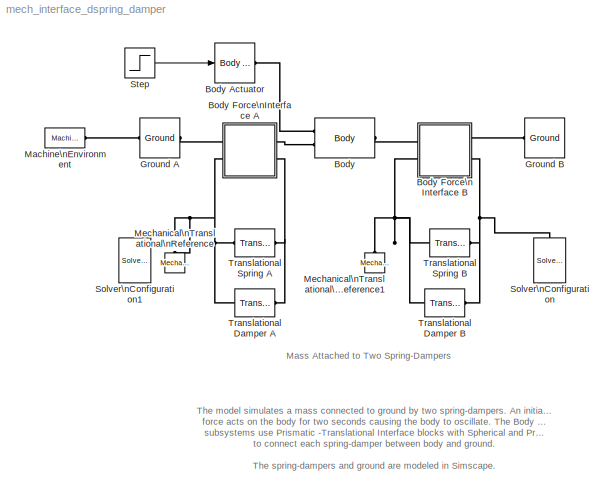
MODEL mech_interface_dspring_damper
KIND model
CONFIG PostLoadFcn = hws = get_param(gcs, 'modelworkspace');\n\nhws.assignin('L_a', 1);\nhws.assignin('L_b', 1);\nhws.assignin('L_c', 0.1);\n\nhws.assignin('M_m', 0.5);\nhws.evalin('I_m = [1/12*M_m*(L_b^2 + L_c^2) 0 0;   0 1/12*M_m*(L_a^2 + L_c^2) 0;   0 0 1/12*M_m*(L_a^2 + L_b^2)];');\n\nclear hws
BLOCK [Reference] Body  REF=mblibv1/Bodies/Body
  AttachedToCS = 1
  BodyColor = [0.5 0.5 0.5]
  CG = Left$CG$[L_a/2 0 0]$CS1$CS1$m$[0 0 0]$Euler X-Y-Z$deg$WORLD$true
  CGPos = [L_a/2 0 0]
  CGRot = [0 0 0]
  CS0Pos = []
  CS0Rot = []
  CS10Pos = []
  CS10Rot = []
  CS11Pos = []
  CS11Rot = []
  CS12Pos = []
  CS12Rot = []
  CS13Pos = []
  CS13Rot = []
  CS14Pos = []
  CS14Rot = []
  CS15Pos = []
  CS15Rot = []
  CS16Pos = []
  CS16Rot = []
  CS17Pos = []
  CS17Rot = []
  CS18Pos = []
  CS18Rot = []
  CS19Pos = []
  CS19Rot = []
  CS1Pos = [0.0 0 0]
  CS1Rot = [0 0 0]
  CS20Pos = []
  CS20Rot = []
  CS2Pos = [L_a 0 0]
  CS2Rot = [0 0 0]
  CS3Pos = [L_a/2 -L_a/2 0]
  CS3Rot = [0 0 0]
  CS4Pos = [L_a/2 L_a/2 0]
  CS4Rot = [0 0 0]
  CS5Pos = []
  CS5Rot = []
  CS6Pos = []
  CS6Rot = []
  CS7Pos = []
  CS7Rot = []
  CS8Pos = []
  CS8Rot = []
  CS9Pos = []
  CS9Rot = []
  ClassName = Body
  Density = 1
  DensityUnits = kg/m^3
  DensityUse = false
  DialogClass = MechanicalBodyBlock
  DialogController = MECH.DynMechDlgSource
  GraphicsMode = 1
  GraphicsObj = []
  Inertia = I_m
  InertiaUnits = kg*m^2
  LConnTagsString = CG|CS1
  LeftPortType = workingframe
  Mass = M_m
  MassUnits = kg
  PhysicalDomain = mechanical
  Ports = [0, 0, 0, 0, 0, 2, 1]
  RConnTagsString = CS2
  RightPortType = workingframe
  Shape = Cylinder
  ShapeDims = [1 1]
  ShapeUnits = m
  ShapeUse = false
  SourceBlock = mblibv1/Bodies/Body
  SourceType = Body
  SubClassName = Unknown
  WorkingFrames = Left$CS1$[0.0 0 0]$Adjoining$Adjoining$m$[0 0 0]$Euler X-Y-Z$deg$WORLD$true#Right$CS2$[L_a 0 0]$CS1$CS1$m$[0 0 0]$Euler X-Y-Z$deg$WORLD$true#Right$CS3$[L_a/2 -L_a/2 0]$CS1$CS1$m$[0 0 0]$Euler X-Y-Z$deg$WORLD$false#Right$CS4$[L_a/2 L_a/2 0]$CS1$CS1$m$[0 0 0]$Euler X-Y-Z$deg$WORLD$false
BLOCK [Reference] Body Actuator  REF=mblibv1/Sensors & \nActuators/Body Actuator
  AccelerationUnits = m/s^2
  ActiveIO = on
  ActuationStyle = Force
  Angle = off
  AngleUnits = deg
  ArcAccelerationUnits = deg/s^2
  ArcVelocityUnits = deg/s
  ClassName = BodyActuatorForceTorque
  CoordPosition = on
  CoordPositionUnits = m
  DialogClass = MechanicalActuatorBlock
  DialogController = MECH.DynMechDlgSource
  Force = on
  ForceUnits = N
  FunctionWithSeparateData = off
  PhysicalDomain = Mechanical
  PortType = blob
  Ports = [1, 0, 0, 0, 0, 0, 1]
  RTWMemSecDataConstants = Inherit from model
  RTWMemSecDataInternal = Inherit from model
  RTWMemSecDataParameters = Inherit from model
  RTWMemSecFuncExecute = Inherit from model
  RTWMemSecFuncInitTerm = Inherit from model
  ReferenceFrame = Absolute (World)
  ShowPortLabels = FromPortIcon
  SourceBlock = mblibv1/Sensors & \nActuators/Body Actuator
  SourceType = Body Actuator
  SystemSampleTime = -1
  Torque = off
  TorqueUnits = N*m
  VelocityUnits = m/s
  Width = 3
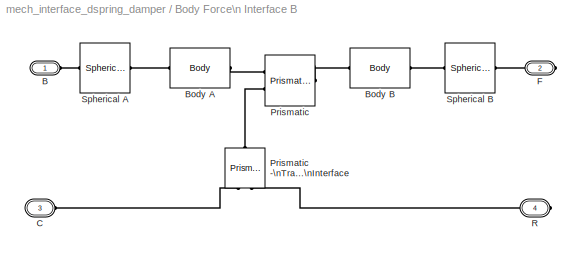
BLOCK [SubSystem] Body Force\n Interface B
  FunctionWithSeparateData = off
  MaskHideContents = off
  MinAlgLoopOccurrences = off
  Opaque = off
  Ports = [0, 0, 0, 0, 0, 2, 2]
  PropExecContextOutsideSubsystem = off
  RTWSystemCode = Auto
  RequestExecContextInheritance = off
BLOCK [PMIOPort] Body Force\n Interface B/B
  Port = 1
  Side = Left
BLOCK [Reference] Body Force\n Interface B/Body A  REF=mblibv1/Bodies/Body
  AttachedToCS = 1
  BodyColor = [0.5 0.5 0.5]
  CG = Left$CG$[-0.25 0 0]$CS2$CS2$m$[0 0 0]$Euler X-Y-Z$deg$WORLD$false
  CGPos = [-0.25 0 0]
  CGRot = [0 0 0]
  CS0Pos = []
  CS0Rot = []
  CS10Pos = []
  CS10Rot = []
  CS11Pos = []
  CS11Rot = []
  CS12Pos = []
  CS12Rot = []
  CS13Pos = []
  CS13Rot = []
  CS14Pos = []
  CS14Rot = []
  CS15Pos = []
  CS15Rot = []
  CS16Pos = []
  CS16Rot = []
  CS17Pos = []
  CS17Rot = []
  CS18Pos = []
  CS18Rot = []
  CS19Pos = []
  CS19Rot = []
  CS1Pos = [-0.5 0 0]
  CS1Rot = [0 0 0]
  CS20Pos = []
  CS20Rot = []
  CS2Pos = [0.5 0 0]
  CS2Rot = [0 0 0]
  CS3Pos = []
  CS3Rot = []
  CS4Pos = []
  CS4Rot = []
  CS5Pos = []
  CS5Rot = []
  CS6Pos = []
  CS6Rot = []
  CS7Pos = []
  CS7Rot = []
  CS8Pos = []
  CS8Rot = []
  CS9Pos = []
  CS9Rot = []
  ClassName = Body
  Density = 1
  DensityUnits = kg/m^3
  DensityUse = false
  DialogClass = MechanicalBodyBlock
  DialogController = MECH.DynMechDlgSource
  GraphicsMode = 1
  GraphicsObj = []
  Inertia = eye(3)*1e-4
  InertiaUnits = kg*m^2
  LConnTagsString = CS1
  LeftPortType = workingframe
  Mass = 1
  MassUnits = kg
  PhysicalDomain = mechanical
  Ports = [0, 0, 0, 0, 0, 1, 1]
  RConnTagsString = CS2
  RightPortType = workingframe
  Shape = Cylinder
  ShapeDims = [1 1]
  ShapeUnits = m
  ShapeUse = false
  SourceBlock = mblibv1/Bodies/Body
  SourceType = Body
  SubClassName = Unknown
  WorkingFrames = Left$CS1$[-0.5 0 0]$CS2$CS2$m$[0 0 0]$Euler X-Y-Z$deg$WORLD$true#Right$CS2$[0.5 0 0]$Adjoining$Adjoining$m$[0 0 0]$Euler X-Y-Z$deg$WORLD$true
BLOCK [Reference] Body Force\n Interface B/Body B  REF=mblibv1/Bodies/Body
  AttachedToCS = 1
  BodyColor = [0.5 0.5 0.5]
  CG = Left$CG$[-0.25 0 0]$CS2$CS2$m$[0 0 0]$Euler X-Y-Z$deg$WORLD$false
  CGPos = [-0.25 0 0]
  CGRot = [0 0 0]
  CS0Pos = []
  CS0Rot = []
  CS10Pos = []
  CS10Rot = []
  CS11Pos = []
  CS11Rot = []
  CS12Pos = []
  CS12Rot = []
  CS13Pos = []
  CS13Rot = []
  CS14Pos = []
  CS14Rot = []
  CS15Pos = []
  CS15Rot = []
  CS16Pos = []
  CS16Rot = []
  CS17Pos = []
  CS17Rot = []
  CS18Pos = []
  CS18Rot = []
  CS19Pos = []
  CS19Rot = []
  CS1Pos = [-0.5 0 0]
  CS1Rot = [0 0 0]
  CS20Pos = []
  CS20Rot = []
  CS2Pos = [0 0 0]
  CS2Rot = [0 0 0]
  CS3Pos = []
  CS3Rot = []
  CS4Pos = []
  CS4Rot = []
  CS5Pos = []
  CS5Rot = []
  CS6Pos = []
  CS6Rot = []
  CS7Pos = []
  CS7Rot = []
  CS8Pos = []
  CS8Rot = []
  CS9Pos = []
  CS9Rot = []
  ClassName = Body
  Density = 1
  DensityUnits = kg/m^3
  DensityUse = false
  DialogClass = MechanicalBodyBlock
  DialogController = MECH.DynMechDlgSource
  GraphicsMode = 1
  GraphicsObj = []
  Inertia = eye(3)*1e-4
  InertiaUnits = kg*m^2
  LConnTagsString = CS1
  LeftPortType = workingframe
  Mass = 1
  MassUnits = kg
  PhysicalDomain = mechanical
  Ports = [0, 0, 0, 0, 0, 1, 1]
  RConnTagsString = CS2
  RightPortType = workingframe
  Shape = Cylinder
  ShapeDims = [1 1]
  ShapeUnits = m
  ShapeUse = false
  SourceBlock = mblibv1/Bodies/Body
  SourceType = Body
  SubClassName = Unknown
  WorkingFrames = Left$CS1$[-0.5 0 0]$CS2$CS2$m$[0 0 0]$Euler X-Y-Z$deg$WORLD$true#Right$CS2$[0 0 0]$Adjoining$Adjoining$m$[0 0 0]$Euler X-Y-Z$deg$WORLD$true
BLOCK [PMIOPort] Body Force\n Interface B/C
  Port = 3
  Side = Left
BLOCK [PMIOPort] Body Force\n Interface B/F
  Port = 2
  Side = Right
BLOCK [Reference] Body Force\n Interface B/Prismatic  REF=mblibv1/Joints/Prismatic
  ClassName = Joint
  CutJoint = off
  DialogClass = JointBlock
  DialogController = MECH.DynMechDlgSource
  LConnTagsString = __newl0|SA1
  LeftPortType = blob
  MarkAsCut = off
  NumSAPorts = 1
  P1Axis = [1 0 0]
  PhysicalDomain = mechanical
  Ports = [0, 0, 0, 0, 0, 2, 1]
  PrimitiveProps = P1$Base$[1 0 0]$prismatic
  Primitives = prismatic
  RConnTagsString = __newr0
  RightPortType = blob
  SourceBlock = mblibv1/Joints/Prismatic
  SourceType = Prismatic
  SubClassName = Unknown
BLOCK [Reference] Body Force\n Interface B/Prismatic -\nTranslational\nInterface  REF=mblibv1/Interface \nElements/Prismatic -\nTranslational\nInterface
  ClassName = PrismaticTranslationalInterface
  DialogClass = PrismaticTranslationalInterface
  DialogController = MECH.DynMechDlgSource
  FunctionWithSeparateData = off
  Ports = [0, 0, 0, 0, 0, 2, 1]
  Primitive = P1
  RTWMemSecDataConstants = Inherit from model
  RTWMemSecDataInternal = Inherit from model
  RTWMemSecDataParameters = Inherit from model
  RTWMemSecFuncExecute = Inherit from model
  RTWMemSecFuncInitTerm = Inherit from model
  ShowPortLabels = FromPortIcon
  SourceBlock = mblibv1/Interface \nElements/Prismatic -\nTranslational\nInterface
  SourceType = Prismatic - Translational Interface
  SystemSampleTime = -1
BLOCK [PMIOPort] Body Force\n Interface B/R
  Port = 4
  Side = Right
BLOCK [Reference] Body Force\n Interface B/Spherical A   REF=mblibv1/Joints/Spherical
  ClassName = Joint
  CutJoint = off
  DialogClass = JointBlock
  DialogController = MECH.DynMechDlgSource
  LConnTagsString = __newl0
  LeftPortType = blob
  MarkAsCut = off
  NumSAPorts = 0
  PhysicalDomain = mechanical
  Ports = [0, 0, 0, 0, 0, 1, 1]
  PrimitiveProps = S$WORLD$[0 0 0]$spherical
  Primitives = spherical
  RConnTagsString = __newr0
  RightPortType = blob
  SAxis = [0 0 0]
  SourceBlock = mblibv1/Joints/Spherical
  SourceType = Spherical
  SubClassName = Unknown
BLOCK [Reference] Body Force\n Interface B/Spherical B  REF=mblibv1/Joints/Spherical
  ClassName = Joint
  CutJoint = off
  DialogClass = JointBlock
  DialogController = MECH.DynMechDlgSource
  LConnTagsString = __newl0
  LeftPortType = blob
  MarkAsCut = off
  NumSAPorts = 0
  PhysicalDomain = mechanical
  Ports = [0, 0, 0, 0, 0, 1, 1]
  PrimitiveProps = S$World$[0 0 0]$spherical
  Primitives = spherical
  RConnTagsString = __newr0
  RightPortType = blob
  SAxis = [0 0 0]
  SourceBlock = mblibv1/Joints/Spherical
  SourceType = Spherical
  SubClassName = Unknown
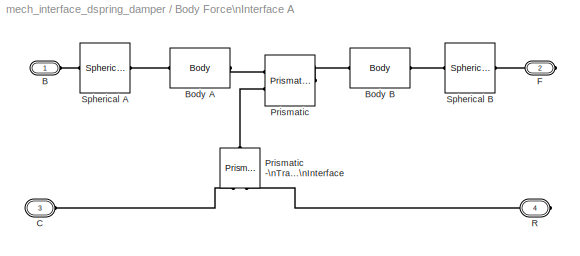
BLOCK [SubSystem] Body Force\nInterface A
  FunctionWithSeparateData = off
  MaskHideContents = off
  MinAlgLoopOccurrences = off
  Opaque = off
  Ports = [0, 0, 0, 0, 0, 2, 2]
  PropExecContextOutsideSubsystem = off
  RTWSystemCode = Auto
  RequestExecContextInheritance = off
BLOCK [PMIOPort] Body Force\nInterface A/B
  Port = 1
  Side = Left
BLOCK [Reference] Body Force\nInterface A/Body A  REF=mblibv1/Bodies/Body
  AttachedToCS = 1
  BodyColor = [0.5 0.5 0.5]
  CG = Left$CG$[0.25 0 0]$CS1$CS1$m$[0 0 0]$Euler X-Y-Z$deg$WORLD$false
  CGPos = [0.25 0 0]
  CGRot = [0 0 0]
  CS0Pos = []
  CS0Rot = []
  CS10Pos = []
  CS10Rot = []
  CS11Pos = []
  CS11Rot = []
  CS12Pos = []
  CS12Rot = []
  CS13Pos = []
  CS13Rot = []
  CS14Pos = []
  CS14Rot = []
  CS15Pos = []
  CS15Rot = []
  CS16Pos = []
  CS16Rot = []
  CS17Pos = []
  CS17Rot = []
  CS18Pos = []
  CS18Rot = []
  CS19Pos = []
  CS19Rot = []
  CS1Pos = [0 0 0]
  CS1Rot = [0 0 0]
  CS20Pos = []
  CS20Rot = []
  CS2Pos = [0.5 0 0]
  CS2Rot = [0 0 0]
  CS3Pos = []
  CS3Rot = []
  CS4Pos = []
  CS4Rot = []
  CS5Pos = []
  CS5Rot = []
  CS6Pos = []
  CS6Rot = []
  CS7Pos = []
  CS7Rot = []
  CS8Pos = []
  CS8Rot = []
  CS9Pos = []
  CS9Rot = []
  ClassName = Body
  Density = 1
  DensityUnits = kg/m^3
  DensityUse = false
  DialogClass = MechanicalBodyBlock
  DialogController = MECH.DynMechDlgSource
  GraphicsMode = 1
  GraphicsObj = []
  Inertia = eye(3)*1e-4
  InertiaUnits = kg*m^2
  LConnTagsString = CS1
  LeftPortType = workingframe
  Mass = 1
  MassUnits = kg
  PhysicalDomain = mechanical
  Ports = [0, 0, 0, 0, 0, 1, 1]
  RConnTagsString = CS2
  RightPortType = workingframe
  Shape = Cylinder
  ShapeDims = [1 1]
  ShapeUnits = m
  ShapeUse = false
  SourceBlock = mblibv1/Bodies/Body
  SourceType = Body
  SubClassName = Unknown
  WorkingFrames = Left$CS1$[0 0 0]$Adjoining$Adjoining$m$[0 0 0]$Euler X-Y-Z$deg$WORLD$true#Right$CS2$[0.5 0 0]$CS1$CS1$m$[0 0 0]$Euler X-Y-Z$deg$WORLD$true
BLOCK [Reference] Body Force\nInterface A/Body B  REF=mblibv1/Bodies/Body
  AttachedToCS = 1
  BodyColor = [0.5 0.5 0.5]
  CG = Left$CG$[0.25 0 0]$CS1$CS1$m$[0 0 0]$Euler X-Y-Z$deg$WORLD$false
  CGPos = [0.25 0 0]
  CGRot = [0 0 0]
  CS0Pos = []
  CS0Rot = []
  CS10Pos = []
  CS10Rot = []
  CS11Pos = []
  CS11Rot = []
  CS12Pos = []
  CS12Rot = []
  CS13Pos = []
  CS13Rot = []
  CS14Pos = []
  CS14Rot = []
  CS15Pos = []
  CS15Rot = []
  CS16Pos = []
  CS16Rot = []
  CS17Pos = []
  CS17Rot = []
  CS18Pos = []
  CS18Rot = []
  CS19Pos = []
  CS19Rot = []
  CS1Pos = [-0.5 0 0]
  CS1Rot = [0 0 0]
  CS20Pos = []
  CS20Rot = []
  CS2Pos = [0.5 0 0]
  CS2Rot = [0 0 0]
  CS3Pos = []
  CS3Rot = []
  CS4Pos = []
  CS4Rot = []
  CS5Pos = []
  CS5Rot = []
  CS6Pos = []
  CS6Rot = []
  CS7Pos = []
  CS7Rot = []
  CS8Pos = []
  CS8Rot = []
  CS9Pos = []
  CS9Rot = []
  ClassName = Body
  Density = 1
  DensityUnits = kg/m^3
  DensityUse = false
  DialogClass = MechanicalBodyBlock
  DialogController = MECH.DynMechDlgSource
  GraphicsMode = 1
  GraphicsObj = []
  Inertia = eye(3)*1e-4
  InertiaUnits = kg*m^2
  LConnTagsString = CS1
  LeftPortType = workingframe
  Mass = 1
  MassUnits = kg
  PhysicalDomain = mechanical
  Ports = [0, 0, 0, 0, 0, 1, 1]
  RConnTagsString = CS2
  RightPortType = workingframe
  Shape = Cylinder
  ShapeDims = [1 1]
  ShapeUnits = m
  ShapeUse = false
  SourceBlock = mblibv1/Bodies/Body
  SourceType = Body
  SubClassName = Unknown
  WorkingFrames = Left$CS1$[-0.5 0 0]$Adjoining$Adjoining$m$[0 0 0]$Euler X-Y-Z$deg$WORLD$true#Right$CS2$[0.5 0 0]$CS1$CS1$m$[0 0 0]$Euler X-Y-Z$deg$WORLD$true
BLOCK [PMIOPort] Body Force\nInterface A/C
  Port = 3
  Side = Left
BLOCK [PMIOPort] Body Force\nInterface A/F
  Port = 2
  Side = Right
BLOCK [Reference] Body Force\nInterface A/Prismatic  REF=mblibv1/Joints/Prismatic
  ClassName = Joint
  CutJoint = off
  DialogClass = JointBlock
  DialogController = MECH.DynMechDlgSource
  LConnTagsString = __newl0|SA1
  LeftPortType = blob
  MarkAsCut = off
  NumSAPorts = 1
  P1Axis = [1 0 0]
  PhysicalDomain = mechanical
  Ports = [0, 0, 0, 0, 0, 2, 1]
  PrimitiveProps = P1$Base$[1 0 0]$prismatic
  Primitives = prismatic
  RConnTagsString = __newr0
  RightPortType = blob
  SourceBlock = mblibv1/Joints/Prismatic
  SourceType = Prismatic
  SubClassName = Unknown
BLOCK [Reference] Body Force\nInterface A/Prismatic -\nTranslational\nInterface  REF=mblibv1/Interface \nElements/Prismatic -\nTranslational\nInterface
  ClassName = PrismaticTranslationalInterface
  DialogClass = PrismaticTranslationalInterface
  DialogController = MECH.DynMechDlgSource
  FunctionWithSeparateData = off
  Ports = [0, 0, 0, 0, 0, 2, 1]
  Primitive = P1
  RTWMemSecDataConstants = Inherit from model
  RTWMemSecDataInternal = Inherit from model
  RTWMemSecDataParameters = Inherit from model
  RTWMemSecFuncExecute = Inherit from model
  RTWMemSecFuncInitTerm = Inherit from model
  ShowPortLabels = FromPortIcon
  SourceBlock = mblibv1/Interface \nElements/Prismatic -\nTranslational\nInterface
  SourceType = Prismatic - Translational Interface
  SystemSampleTime = -1
BLOCK [PMIOPort] Body Force\nInterface A/R
  Port = 4
  Side = Right
BLOCK [Reference] Body Force\nInterface A/Spherical A   REF=mblibv1/Joints/Spherical
  ClassName = Joint
  CutJoint = off
  DialogClass = JointBlock
  DialogController = MECH.DynMechDlgSource
  LConnTagsString = __newl0
  LeftPortType = blob
  MarkAsCut = off
  NumSAPorts = 0
  PhysicalDomain = mechanical
  Ports = [0, 0, 0, 0, 0, 1, 1]
  PrimitiveProps = S$WORLD$[0 0 0]$spherical
  Primitives = spherical
  RConnTagsString = __newr0
  RightPortType = blob
  SAxis = [0 0 0]
  SourceBlock = mblibv1/Joints/Spherical
  SourceType = Spherical
  SubClassName = Unknown
BLOCK [Reference] Body Force\nInterface A/Spherical B  REF=mblibv1/Joints/Spherical
  ClassName = Joint
  CutJoint = off
  DialogClass = JointBlock
  DialogController = MECH.DynMechDlgSource
  LConnTagsString = __newl0
  LeftPortType = blob
  MarkAsCut = off
  NumSAPorts = 0
  PhysicalDomain = mechanical
  Ports = [0, 0, 0, 0, 0, 1, 1]
  PrimitiveProps = S$World$[0 0 0]$spherical
  Primitives = spherical
  RConnTagsString = __newr0
  RightPortType = blob
  SAxis = [0 0 0]
  SourceBlock = mblibv1/Joints/Spherical
  SourceType = Spherical
  SubClassName = Unknown
BLOCK [Reference] Ground A  REF=mblibv1/Bodies/Ground
  ClassName = Ground
  CoordPosition = [0 0 0]
  CoordPositionUnits = m
  DialogClass = GroundBlock
  DialogController = MECH.DynMechDlgSource
  FunctionWithSeparateData = off
  LeftPortType = env
  MachineId = [0 0]
  PhysicalDomain = Mechanical
  Ports = [0, 0, 0, 0, 0, 1, 1]
  RTWMemSecDataConstants = Inherit from model
  RTWMemSecDataInternal = Inherit from model
  RTWMemSecDataParameters = Inherit from model
  RTWMemSecFuncExecute = Inherit from model
  RTWMemSecFuncInitTerm = Inherit from model
  RightPortType = workingframe
  ShowEnvPort = on
  ShowPortLabels = FromPortIcon
  SourceBlock = mblibv1/Bodies/Ground
  SourceType = Ground
  StateVectorMgrId = -1
  SystemSampleTime = -1
  UserData = DataTag1
  UserDataPersistent = on
BLOCK [Reference] Ground B  REF=mblibv1/Bodies/Ground
  ClassName = Ground
  CoordPosition = [2 0 0]
  CoordPositionUnits = m
  DialogClass = GroundBlock
  DialogController = MECH.DynMechDlgSource
  FunctionWithSeparateData = off
  LeftPortType = env
  MachineId = [0 0]
  PhysicalDomain = Mechanical
  Ports = [0, 0, 0, 0, 0, 0, 1]
  RTWMemSecDataConstants = Inherit from model
  RTWMemSecDataInternal = Inherit from model
  RTWMemSecDataParameters = Inherit from model
  RTWMemSecFuncExecute = Inherit from model
  RTWMemSecFuncInitTerm = Inherit from model
  RightPortType = workingframe
  ShowEnvPort = off
  ShowPortLabels = FromPortIcon
  SourceBlock = mblibv1/Bodies/Ground
  SourceType = Ground
  StateVectorMgrId = -1
  SystemSampleTime = -1
  UserData = DataTag2
  UserDataPersistent = on
BLOCK [Reference] Machine\nEnvironment  REF=mblibv1/Bodies/Machine\nEnvironment
  AnalysisType = Forward dynamics
  AngularAssemblyTolerance = 1e-3
  AngularAssemblyToleranceUnits = rad
  ClassName = Environment
  ConstraintAbsTolerance = 1e-4
  ConstraintRelTolerance = 1e-4
  ConstraintSolverType = Stabilizing
  DialogController = MECH.DialogSource
  DialogTemplateClass = MECH.MachineEnvironment
  Dimensionality = Auto-detect
  FunctionWithSeparateData = off
  Gravity = [0 0 0]
  GravityAsSignal = off
  GravityUnits = m/s^2
  LinearAssemblyTolerance = 1e-3
  LinearAssemblyToleranceUnits = m
  PerturbationSize = 1e-5
  PhysicalDomain = Mechanical
  PortType = env
  Ports = [0, 0, 0, 0, 0, 0, 1]
  RTWMemSecDataConstants = Inherit from model
  RTWMemSecDataInternal = Inherit from model
  RTWMemSecDataParameters = Inherit from model
  RTWMemSecFuncExecute = Inherit from model
  RTWMemSecFuncInitTerm = Inherit from model
  RedundancyAnalysisTolerance = 1e-14
  RedundancyAnalysisToleranceType = Automatically select tolerance
  ShowPortLabels = FromPortIcon
  SourceBlock = mblibv1/Bodies/Machine\nEnvironment
  SourceType = Machine Environment
  StatePerturbationType = Fixed
  SyncWhenCopied = off
  SystemSampleTime = -1
  Tag = Factory ground
  UseRobustSingularityHandling = off
  VisualizeMachine = on
BLOCK [Reference] Mechanical\nTranslational\nReference  REF=fl_lib/Mechanical/Translational\nElements/Mechanical\nTranslational\nReference
  ClassName = reference_transl
  DialogController = NetworkEngine.DynNeDlgSource
  FunctionWithSeparateData = off
  LocalVarLogging = []
  Ports = [0, 0, 0, 0, 0, 1]
  RTWMemSecDataConstants = Inherit from model
  RTWMemSecDataInternal = Inherit from model
  RTWMemSecDataParameters = Inherit from model
  RTWMemSecFuncExecute = Inherit from model
  RTWMemSecFuncInitTerm = Inherit from model
  SchemaVersion = 1
  ShowPortLabels = FromPortIcon
  SourceBlock = fl_lib/Mechanical/Translational\nElements/Mechanical\nTranslational\nReference
  SourceType = Mechanical\nTranslational\nReference
  SystemSampleTime = -1
BLOCK [Reference] Mechanical\nTranslational\nReference1  REF=fl_lib/Mechanical/Translational\nElements/Mechanical\nTranslational\nReference
  ClassName = reference_transl
  DialogController = NetworkEngine.DynNeDlgSource
  FunctionWithSeparateData = off
  LocalVarLogging = []
  Ports = [0, 0, 0, 0, 0, 1]
  RTWMemSecDataConstants = Inherit from model
  RTWMemSecDataInternal = Inherit from model
  RTWMemSecDataParameters = Inherit from model
  RTWMemSecFuncExecute = Inherit from model
  RTWMemSecFuncInitTerm = Inherit from model
  SchemaVersion = 1
  ShowPortLabels = FromPortIcon
  SourceBlock = fl_lib/Mechanical/Translational\nElements/Mechanical\nTranslational\nReference
  SourceType = Mechanical\nTranslational\nReference
  SystemSampleTime = -1
BLOCK [Reference] Solver\nConfiguration  REF=nesl_utility/Solver\nConfiguration
  Accelerate = off
  DialogController = NetworkEngine.DynNeUtilDlgSource
  DoDC = off
  DoFixedCost = off
  FunctionWithSeparateData = off
  LeftPortType = input
  LinearAlgebra = Sparse
  MaxModeIter = 2
  MaxNonlinIter = 12
  PhysicalDomain = network_engine_domain
  Ports = [0, 0, 0, 0, 0, 0, 1]
  Profile = off
  RTWMemSecDataConstants = Inherit from model
  RTWMemSecDataInternal = Inherit from model
  RTWMemSecDataParameters = Inherit from model
  RTWMemSecFuncExecute = Inherit from model
  RTWMemSecFuncInitTerm = Inherit from model
  ResidualTolerance = 1e-9
  RightPortType = generic
  ShowPortLabels = FromPortIcon
  SourceBlock = nesl_utility/Solver\nConfiguration
  SourceType = Solver\nConfiguration
  SubClassName = solver
  SystemSampleTime = -1
BLOCK [Reference] Solver\nConfiguration1  REF=nesl_utility/Solver\nConfiguration
  Accelerate = off
  DialogController = NetworkEngine.DynNeUtilDlgSource
  DoDC = off
  DoFixedCost = off
  FunctionWithSeparateData = off
  LeftPortType = input
  LinearAlgebra = Sparse
  MaxModeIter = 2
  MaxNonlinIter = 12
  PhysicalDomain = network_engine_domain
  Ports = [0, 0, 0, 0, 0, 0, 1]
  Profile = off
  RTWMemSecDataConstants = Inherit from model
  RTWMemSecDataInternal = Inherit from model
  RTWMemSecDataParameters = Inherit from model
  RTWMemSecFuncExecute = Inherit from model
  RTWMemSecFuncInitTerm = Inherit from model
  ResidualTolerance = 1e-9
  RightPortType = generic
  ShowPortLabels = FromPortIcon
  SourceBlock = nesl_utility/Solver\nConfiguration
  SourceType = Solver\nConfiguration
  SubClassName = solver
  SystemSampleTime = -1
BLOCK [Step] Step
  After = [0 0 0]
  Before = [50 50 0]
  SampleTime = 0
  Time = 2
BLOCK [Reference] Translational Damper A  REF=fl_lib/Mechanical/Translational\nElements/Translational Damper
  ClassName = damper_transl
  D = 100
  D_unit = N/(m/s)
  DialogController = NetworkEngine.DynNeDlgSource
  FunctionWithSeparateData = off
  LocalVarDescs = |Damping force (N)|Damper relative velocity (m/s)|Power dissipated in the damper (W)
  LocalVarLogging = [0 0 0]
  LocalVarNames = |force|rel_velocity|power
  Ports = [0, 0, 0, 0, 0, 1, 1]
  RTWMemSecDataConstants = Inherit from model
  RTWMemSecDataInternal = Inherit from model
  RTWMemSecDataParameters = Inherit from model
  RTWMemSecFuncExecute = Inherit from model
  RTWMemSecFuncInitTerm = Inherit from model
  SchemaVersion = 1
  ShowPortLabels = FromPortIcon
  SourceBlock = fl_lib/Mechanical/Translational\nElements/Translational Damper
  SourceType = Translational Damper
  SystemSampleTime = -1
  force_Log = off
  power_Log = off
  rel_velocity_Log = off
BLOCK [Reference] Translational Damper B  REF=fl_lib/Mechanical/Translational\nElements/Translational Damper
  ClassName = damper_transl
  D = 100
  D_unit = N/(m/s)
  DialogController = NetworkEngine.DynNeDlgSource
  FunctionWithSeparateData = off
  LocalVarDescs = |Damping force (N)|Damper relative velocity (m/s)|Power dissipated in the damper (W)
  LocalVarLogging = [0 0 0]
  LocalVarNames = |force|rel_velocity|power
  Ports = [0, 0, 0, 0, 0, 1, 1]
  RTWMemSecDataConstants = Inherit from model
  RTWMemSecDataInternal = Inherit from model
  RTWMemSecDataParameters = Inherit from model
  RTWMemSecFuncExecute = Inherit from model
  RTWMemSecFuncInitTerm = Inherit from model
  SchemaVersion = 1
  ShowPortLabels = FromPortIcon
  SourceBlock = fl_lib/Mechanical/Translational\nElements/Translational Damper
  SourceType = Translational Damper
  SystemSampleTime = -1
  force_Log = off
  power_Log = off
  rel_velocity_Log = off
BLOCK [Reference] Translational Spring A  REF=fl_lib/Mechanical/Translational\nElements/Translational Spring
  ClassName = spring_transl
  DialogController = NetworkEngine.DynNeDlgSource
  FunctionWithSeparateData = off
  LocalVarDescs = |Spring force (N)|Spring deformation (m)
  LocalVarLogging = [0 0]
  LocalVarNames = |force|deformation
  Ports = [0, 0, 0, 0, 0, 1, 1]
  RTWMemSecDataConstants = Inherit from model
  RTWMemSecDataInternal = Inherit from model
  RTWMemSecDataParameters = Inherit from model
  RTWMemSecFuncExecute = Inherit from model
  RTWMemSecFuncInitTerm = Inherit from model
  SchemaVersion = 1
  ShowPortLabels = FromPortIcon
  SourceBlock = fl_lib/Mechanical/Translational\nElements/Translational Spring
  SourceType = Translational Spring
  SystemSampleTime = -1
  deformation_Log = off
  force_Log = off
  init_def = 0
  init_def_unit = m
  spr_rate = 100
  spr_rate_unit = N/m
BLOCK [Reference] Translational Spring B  REF=fl_lib/Mechanical/Translational\nElements/Translational Spring
  ClassName = spring_transl
  DialogController = NetworkEngine.DynNeDlgSource
  FunctionWithSeparateData = off
  LocalVarDescs = |Spring force (N)|Spring deformation (m)
  LocalVarLogging = [0 0]
  LocalVarNames = |force|deformation
  Ports = [0, 0, 0, 0, 0, 1, 1]
  RTWMemSecDataConstants = Inherit from model
  RTWMemSecDataInternal = Inherit from model
  RTWMemSecDataParameters = Inherit from model
  RTWMemSecFuncExecute = Inherit from model
  RTWMemSecFuncInitTerm = Inherit from model
  SchemaVersion = 1
  ShowPortLabels = FromPortIcon
  SourceBlock = fl_lib/Mechanical/Translational\nElements/Translational Spring
  SourceType = Translational Spring
  SystemSampleTime = -1
  deformation_Log = off
  force_Log = off
  init_def = 0
  init_def_unit = m
  spr_rate = 100
  spr_rate_unit = N/m
ANNOTATION (root): Mass Attached to Two Spring-Dampers
ANNOTATION (root): The model simulates a mass connected to ground by two spring-dampers. An initial \nforce acts on the body for two seconds causing the body to oscillate. The Body Force Interface\nsubsystems use Prismatic -Translational Interface blocks with Spherical and Prismatic joints\nto connect each spring-damper between body and ground.\n\nThe spring-dampers and ground are modeled in Simscape.\nThe rest of t...<+40ch>
LINE Step:1 -> Body Actuator:1
PLINE Body Actuator:RConn1 -- Body:LConn1
PLINE Body Force\n Interface B/B:RConn1 -- Body Force\n Interface B/Spherical A :LConn1
PLINE Body Force\n Interface B/Body A:LConn1 -- Body Force\n Interface B/Spherical A :RConn1
PLINE Body Force\n Interface B/Body A:RConn1 -- Body Force\n Interface B/Prismatic:LConn1
PLINE Body Force\n Interface B/Body B:LConn1 -- Body Force\n Interface B/Prismatic:RConn1
PLINE Body Force\n Interface B/Body B:RConn1 -- Body Force\n Interface B/Spherical B:LConn1
PLINE Body Force\n Interface B/C:RConn1 -- Body Force\n Interface B/Prismatic -\nTranslational\nInterface:LConn1
PLINE Body Force\n Interface B/F:RConn1 -- Body Force\n Interface B/Spherical B:RConn1
PLINE Body Force\n Interface B/Prismatic -\nTranslational\nInterface:LConn2 -- Body Force\n Interface B/R:RConn1
PLINE Body Force\n Interface B/Prismatic -\nTranslational\nInterface:RConn1 -- Body Force\n Interface B/Prismatic:LConn2
PLINE Body Force\n Interface B:LConn1 -- Body:RConn1
PNET net1: Body Force\n Interface B:LConn2 -- Mechanical\nTranslational\nReference1:LConn1 -- Translational Damper B:RConn1 -- Translational Spring B:RConn1
PLINE Body Force\n Interface B:RConn1 -- Ground B:RConn1
PNET net2: Body Force\n Interface B:RConn2 -- Solver\nConfiguration:RConn1 -- Translational Damper B:LConn1 -- Translational Spring B:LConn1
PLINE Body Force\nInterface A/B:RConn1 -- Body Force\nInterface A/Spherical A :LConn1
PLINE Body Force\nInterface A/Body A:LConn1 -- Body Force\nInterface A/Spherical A :RConn1
PLINE Body Force\nInterface A/Body A:RConn1 -- Body Force\nInterface A/Prismatic:LConn1
PLINE Body Force\nInterface A/Body B:LConn1 -- Body Force\nInterface A/Prismatic:RConn1
PLINE Body Force\nInterface A/Body B:RConn1 -- Body Force\nInterface A/Spherical B:LConn1
PLINE Body Force\nInterface A/C:RConn1 -- Body Force\nInterface A/Prismatic -\nTranslational\nInterface:LConn1
PLINE Body Force\nInterface A/F:RConn1 -- Body Force\nInterface A/Spherical B:RConn1
PLINE Body Force\nInterface A/Prismatic -\nTranslational\nInterface:LConn2 -- Body Force\nInterface A/R:RConn1
PLINE Body Force\nInterface A/Prismatic -\nTranslational\nInterface:RConn1 -- Body Force\nInterface A/Prismatic:LConn2
PLINE Body Force\nInterface A:LConn1 -- Ground A:RConn1
PNET net3: Body Force\nInterface A:LConn2 -- Mechanical\nTranslational\nReference:LConn1 -- Solver\nConfiguration1:RConn1 -- Translational Damper A:RConn1 -- Translational Spring A:RConn1
PLINE Body Force\nInterface A:RConn1 -- Body:LConn2
PNET net4: Body Force\nInterface A:RConn2 -- Translational Damper A:LConn1 -- Translational Spring A:LConn1
PLINE Ground A:LConn1 -- Machine\nEnvironment:RConn1
note: PNET lines group multi-terminal physical nets as a canonical sorted terminal list (undirected conserving connections); 2-terminal nets keep the pairwise PLINE form
